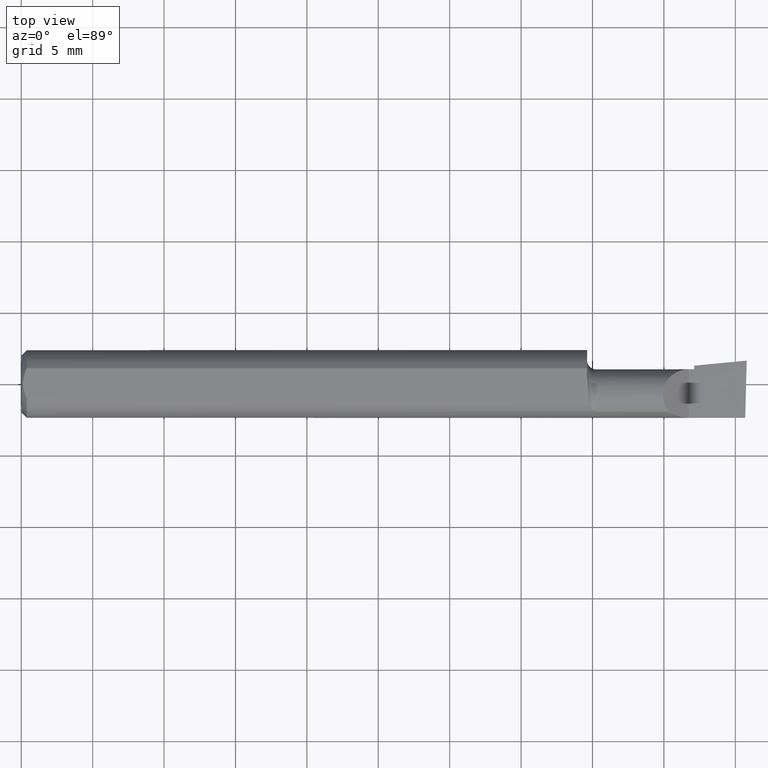
[diagram: clean part render]
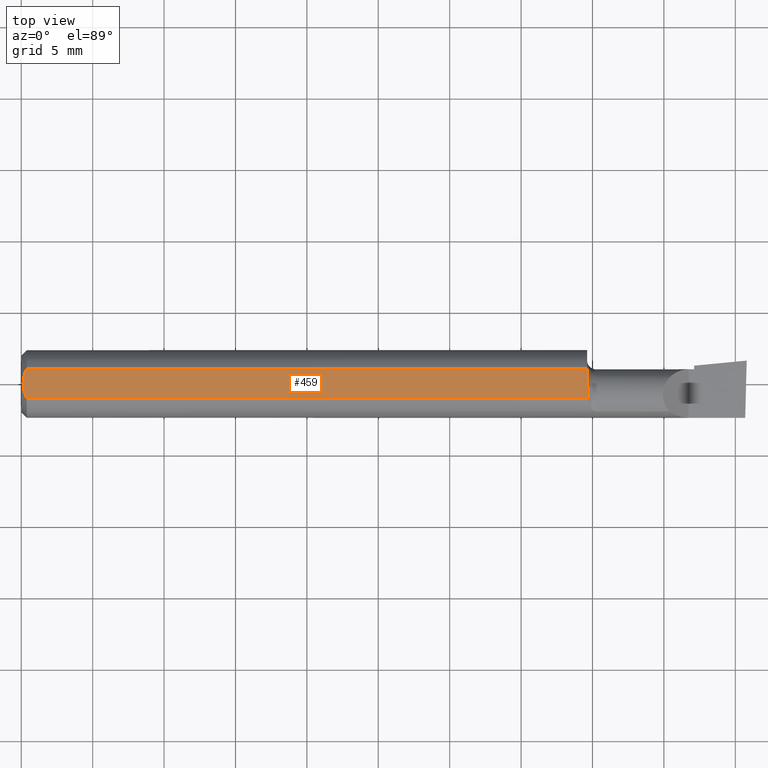
[diagram: same view with one face highlighted and labeled with its STEP entity id]
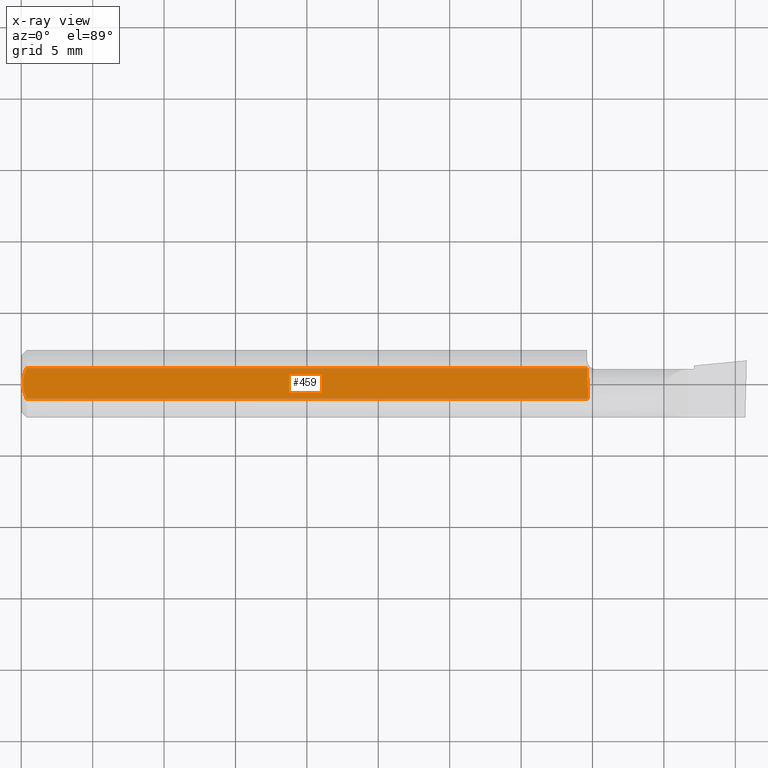
[diagram: x-ray of the same camera — body ghosted, the highlighted face saturated]
A machine part, top view. The second image highlights one B-rep face of the part: STEP entity #459.
The next image is the same camera in x-ray: the body ghosted, the highlighted face saturated — about 0% of this face is hidden behind the body in this view.
In plain terms, the highlighted planar face has unit normal (0, -0, -1).
Its self-contained STEP definition (entity closure, byte-faithful):
#10 = CARTESIAN_POINT ( 'NONE',  ( 1.559999999999999831, 0.04209513035969836975, 0.08360000000000000764 ) ) ;
#26 = ORIENTED_EDGE ( 'NONE', *, *, #286, .F. ) ;
#28 = CARTESIAN_POINT ( 'NONE',  ( 0.005975039161239525769, -0.01453776427033148279, 0.08359999999999997988 ) ) ;
#30 = CARTESIAN_POINT ( 'NONE',  ( 0.01499999999999999944, -0.04209513035969835587, 0.08360000000000000764 ) ) ;
#31 = CARTESIAN_POINT ( 'NONE',  ( 0.01499999999999999598, 0.04209513035969837669, 0.08360000000000000764 ) ) ;
#34 = ORIENTED_EDGE ( 'NONE', *, *, #327, .F. ) ;
#38 = CARTESIAN_POINT ( 'NONE',  ( 1.563100172961549239, -0.02248939038936998217, 0.08360000000000003539 ) ) ;
#43 = CARTESIAN_POINT ( 'NONE',  ( 0.009492654797564337166, 0.02859466010166625619, 0.08359999999999997988 ) ) ;
#44 = VERTEX_POINT ( 'NONE', #94 ) ;
#45 = CARTESIAN_POINT ( 'NONE',  ( 1.563304846087257838, -0.03228758060674635777, 0.08360000000000003539 ) ) ;
#58 = ORIENTED_EDGE ( 'NONE', *, *, #482, .F. ) ;
#62 = B_SPLINE_CURVE_WITH_KNOTS ( 'NONE', 3,
 ( #123, #402, #453, #177, #38, #45, #500, #266 ),
 .UNSPECIFIED., .F., .F.,
 ( 4, 2, 2, 4 ),
 ( 0.009645755411050990769, 0.01039251847056328788, 0.01076590000031943731, 0.01113928153007558500 ),
 .UNSPECIFIED. ) ;
#76 = CARTESIAN_POINT ( 'NONE',  ( 1.562801882726447822, -0.04209513036031876931, 0.08360000000000000764 ) ) ;
#88 = ORIENTED_EDGE ( 'NONE', *, *, #389, .F. ) ;
#94 = CARTESIAN_POINT ( 'NONE',  ( 0.01499999999999999944, -0.04209513035969835587, 0.08360000000000000764 ) ) ;
#97 = ORIENTED_EDGE ( 'NONE', *, *, #196, .F. ) ;
#108 = LINE ( 'NONE', #111, #155 ) ;
#111 = CARTESIAN_POINT ( 'NONE',  ( 1.559999999999999831, 0.1436000000000000332, 0.08359999999999999376 ) ) ;
#122 = VERTEX_POINT ( 'NONE', #198 ) ;
#123 = CARTESIAN_POINT ( 'NONE',  ( 1.559999999999999831, 0.01648776436477898677, 0.08360000000000000764 ) ) ;
#145 = B_SPLINE_CURVE_WITH_KNOTS ( 'NONE', 3,
 ( #30, #575, #346, #28, #525, #436 ),
 .UNSPECIFIED., .F., .F.,
 ( 4, 2, 4 ),
 ( 0.005785415439423114564, 0.006333348270144337384, 0.006881281100865560205 ),
 .UNSPECIFIED. ) ;
#147 = CARTESIAN_POINT ( 'NONE',  ( 2.000000000000000000, 0.1436000000000000332, 0.08359999999999999376 ) ) ;
#148 = DIRECTION ( 'NONE',  ( 0.0000000000000000000, -1.189000693621284344E-16, -1.000000000000000000 ) ) ;
#155 = VECTOR ( 'NONE', #218, 39.37007874015748143 ) ;
#163 = ORIENTED_EDGE ( 'NONE', *, *, #268, .F. ) ;
#168 = VECTOR ( 'NONE', #269, 39.37007874015748143 ) ;
#172 = CARTESIAN_POINT ( 'NONE',  ( 0.01499999999999999598, 0.04209513035969837669, 0.08360000000000000764 ) ) ;
#177 = CARTESIAN_POINT ( 'NONE',  ( 1.562745430550909864, -0.01759363372028095035, 0.08360000000000000764 ) ) ;
#190 = CARTESIAN_POINT ( 'NONE',  ( 0.0000000000000000000, 0.04209513035969837669, 0.08360000000000000764 ) ) ;
#193 = FACE_OUTER_BOUND ( 'NONE', #443, .T. ) ;
#196 = EDGE_CURVE ( 'NONE', #406, #302, #108, .T. ) ;
#198 = CARTESIAN_POINT ( 'NONE',  ( 0.005000000000000236026, 1.025183009042025117E-17, 0.08360000000000000764 ) ) ;
#204 = VERTEX_POINT ( 'NONE', #31 ) ;
#218 = DIRECTION ( 'NONE',  ( 4.268512490100411279E-18, -1.000000000000000000, 1.189000693621284344E-16 ) ) ;
#222 = CARTESIAN_POINT ( 'NONE',  ( 0.005981829149300850468, 0.01454044632356567279, 0.08360000000000000764 ) ) ;
#225 = AXIS2_PLACEMENT_3D ( 'NONE', #147, #148, #477 ) ;
#229 = CARTESIAN_POINT ( 'NONE',  ( 0.005000000000000236026, 1.025183009042025117E-17, 0.08360000000000000764 ) ) ;
#261 = LINE ( 'NONE', #190, #311 ) ;
#266 = CARTESIAN_POINT ( 'NONE',  ( 1.562801882726447822, -0.04209513036031876931, 0.08360000000000000764 ) ) ;
#268 = EDGE_CURVE ( 'NONE', #122, #204, #337, .T. ) ;
#269 = DIRECTION ( 'NONE',  ( -1.000000000000000000, -0.0000000000000000000, -0.0000000000000000000 ) ) ;
#286 = EDGE_CURVE ( 'NONE', #302, #563, #62, .T. ) ;
#302 = VERTEX_POINT ( 'NONE', #317 ) ;
#310 = CARTESIAN_POINT ( 'NONE',  ( 0.005000000000000223883, 0.007308422719211823959, 0.08360000000000000764 ) ) ;
#311 = VECTOR ( 'NONE', #510, 39.37007874015748143 ) ;
#317 = CARTESIAN_POINT ( 'NONE',  ( 1.559999999999999831, 0.01648776436477898677, 0.08360000000000000764 ) ) ;
#327 = EDGE_CURVE ( 'NONE', #563, #44, #342, .T. ) ;
#337 = B_SPLINE_CURVE_WITH_KNOTS ( 'NONE', 3,
 ( #229, #310, #222, #43, #408, #172 ),
 .UNSPECIFIED., .F., .F.,
 ( 4, 2, 4 ),
 ( 0.006881281100865560205, 0.007427683811376459971, 0.007974086521887359738 ),
 .UNSPECIFIED. ) ;
#342 = LINE ( 'NONE', #456, #168 ) ;
#346 = CARTESIAN_POINT ( 'NONE',  ( 0.009539353699420832430, -0.02875682547511371895, 0.08360000000000000764 ) ) ;
#389 = EDGE_CURVE ( 'NONE', #204, #406, #261, .T. ) ;
#402 = CARTESIAN_POINT ( 'NONE',  ( 1.559999999999999831, 0.006771783253975924462, 0.08360000000000003539 ) ) ;
#406 = VERTEX_POINT ( 'NONE', #10 ) ;
#408 = CARTESIAN_POINT ( 'NONE',  ( 0.01203648650249650523, 0.03550565407121123590, 0.08360000000000000764 ) ) ;
#436 = CARTESIAN_POINT ( 'NONE',  ( 0.005000000000000236026, 1.025183009042025117E-17, 0.08360000000000000764 ) ) ;
#443 = EDGE_LOOP ( 'NONE', ( #26, #97, #88, #163, #58, #34 ) ) ;
#453 = CARTESIAN_POINT ( 'NONE',  ( 1.561342386211017619, -0.002910845068973393415, 0.08360000000000000764 ) ) ;
#456 = CARTESIAN_POINT ( 'NONE',  ( 0.0000000000000000000, -0.04209513035969835587, 0.08360000000000000764 ) ) ;
#459 = ADVANCED_FACE ( 'NONE', ( #193 ), #566, .F. ) ;
#477 = DIRECTION ( 'NONE',  ( 0.0000000000000000000, 1.000000000000000000, -1.189000693621284344E-16 ) ) ;
#482 = EDGE_CURVE ( 'NONE', #44, #122, #145, .T. ) ;
#500 = CARTESIAN_POINT ( 'NONE',  ( 1.563150981066091738, -0.03719006435924360893, 0.08360000000000003539 ) ) ;
#510 = DIRECTION ( 'NONE',  ( 1.000000000000000000, 0.0000000000000000000, 0.0000000000000000000 ) ) ;
#525 = CARTESIAN_POINT ( 'NONE',  ( 0.005000000000000228220, -0.007328888879231052964, 0.08360000000000000764 ) ) ;
#563 = VERTEX_POINT ( 'NONE', #76 ) ;
#566 = PLANE ( 'NONE',  #225 ) ;
#575 = CARTESIAN_POINT ( 'NONE',  ( 0.01206089165507025739, -0.03555991978469312531, 0.08360000000000000764 ) ) ;